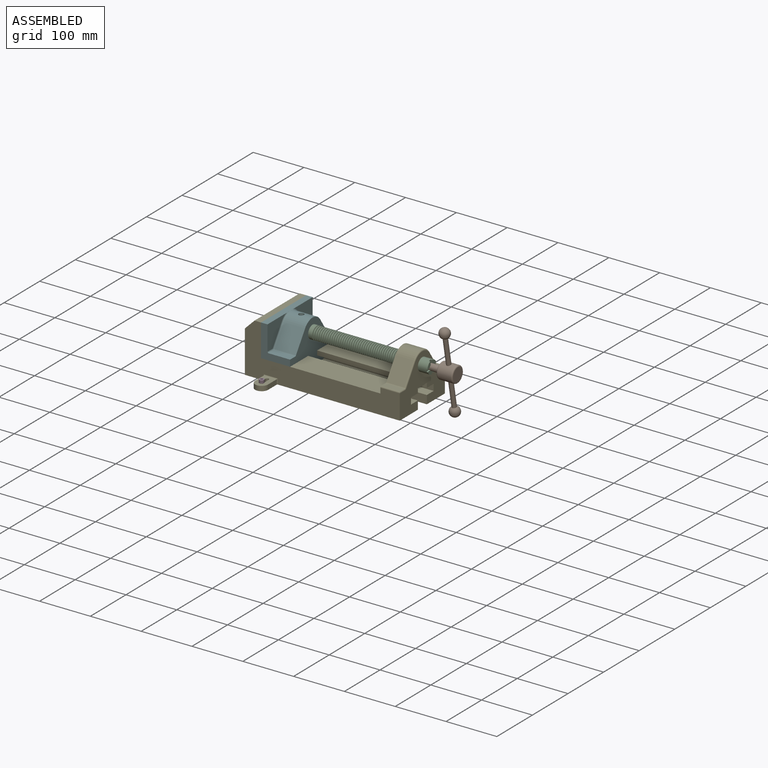
[diagram: assembled view]
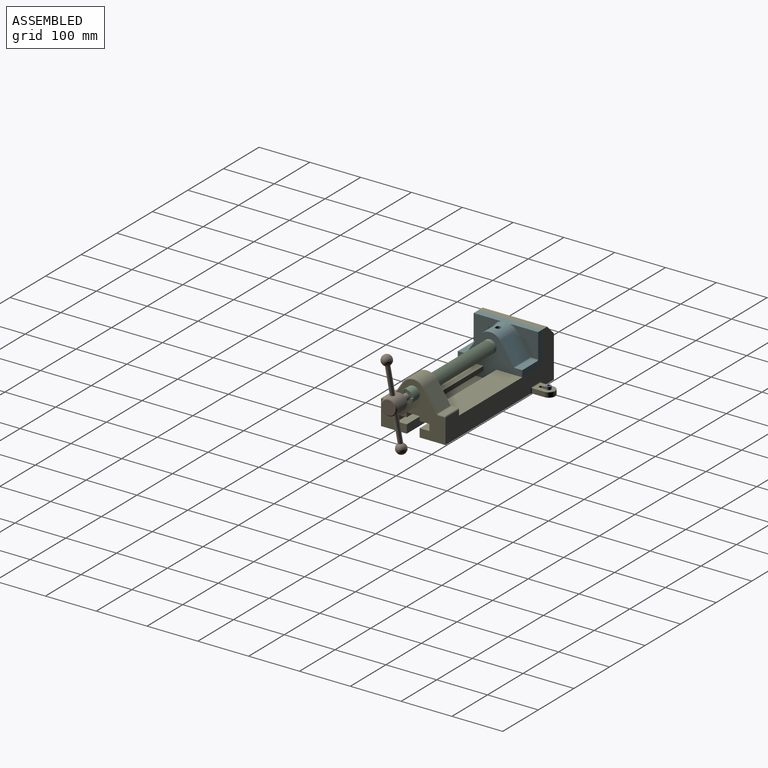
[diagram: assembled view, second angle]
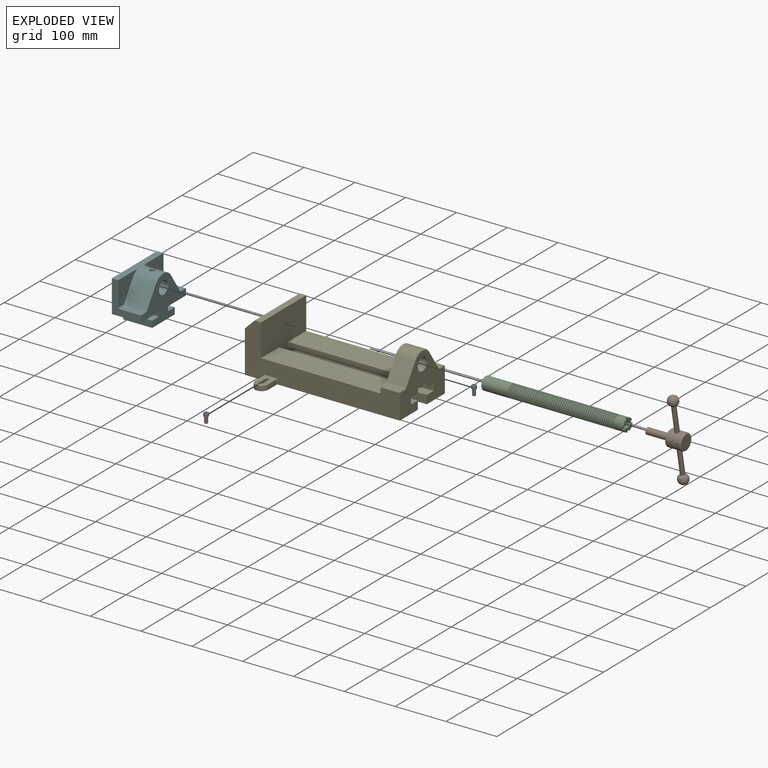
[diagram: exploded view]
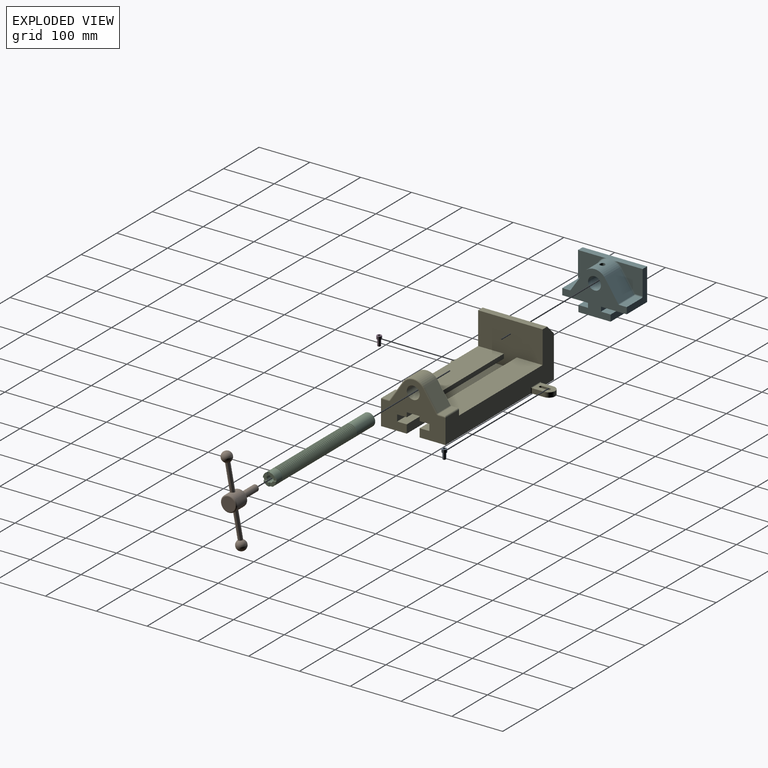
[diagram: exploded view, second angle]
ASSEMBLY  parts=6 mates=6
PART A: 15 faces, bbox 10.3x10.3x19.1 mm
  f0: plane 8.51x8.51mm, normal (0,0,1), area 37.2mm2, adj f5,f6,f7,f8,f9,f10,f14
  f1: cylinder r=3.17mm len=11.94mm, axis (0,0,1), area 238.2mm2, adj f4,f12
  f2: plane 4.83x4.83mm, normal (0,0,-1), area 18.3mm2, adj f12
  f3: cylinder r=4.76mm len=9.53mm, axis (0,0,-1), area 159.6mm2, adj f13,f14
  f4: plane 8.51x8.51mm, normal (0,0,-1), area 25.2mm2, adj f1,f13
  f5: plane 4.83x2.38mm, normal (-0.5,-0.87,0), area 13.3mm2, adj f0,f6,f10,f11
  f6: plane 4.83x2.38mm, normal (0.5,-0.87,0), area 13.3mm2, adj f0,f5,f7,f11
  f7: plane 4.83x2.75mm, normal (1,0,0), area 13.3mm2, adj f0,f6,f8,f11
  f8: plane 4.83x2.38mm, normal (0.5,0.87,0), area 13.3mm2, adj f0,f7,f9,f11
  f9: plane 4.83x2.38mm, normal (-0.5,0.87,0), area 13.3mm2, adj f0,f8,f10,f11
  f10: plane 4.83x2.75mm, normal (-1,0,0), area 13.3mm2, adj f0,f5,f9,f11
  f11: plane 5.5x4.76mm, normal (0,0,1), area 19.6mm2, adj f5,f6,f7,f8,f9,f10
  f12: cone r=3.17mm half-angle=45deg, axis (0,0,1), area 18.9mm2, adj f1,f2
  f13: torus R=4.25mm, axis (0,0,1), area 23mm2, adj f3,f4
  f14: torus R=4.25mm, axis (0,0,1), area 23mm2, adj f0,f3
PART B: 11 faces, bbox 76.2x172.7x34.4 mm
  f0: sphere r=10.16mm, area 1231.8mm2, adj f1
  f1: cylinder r=4.45mm len=51.82mm, axis (0,1,0), area 1438.5mm2, adj f0,f4
  f2: sphere r=10.16mm, area 1231.8mm2, adj f3
  f3: cylinder r=4.45mm len=51.82mm, axis (0,1,0), area 1438.5mm2, adj f2,f4
  f4: cylinder r=15.88mm len=31.75mm, axis (-1,0,0), area 2534.7mm2, adj f1,f3,f9,f10
  f5: cylinder r=6.35mm len=44.45mm, axis (-1,0,0), area 1773.5mm2, adj f6,f8
  f6: plane 12.7x12.7mm, normal (-1,0,0), area 126.7mm2, adj f5
  f7: plane 26.67x26.67mm, normal (1,0,0), area 558.6mm2, adj f10
  f8: plane 26.67x26.67mm, normal (-1,0,0), area 432mm2, adj f5,f9
  f9: torus R=13.33mm, axis (1,0,0), area 374.8mm2, adj f4,f8
  f10: torus R=13.33mm, axis (1,0,0), area 374.8mm2, adj f4,f7
PART C: 220 faces, bbox 279.4x25.4x25.4 mm
  f0: cylinder r=12.7mm len=25.4mm, axis (-1,0,0), area 1468.2mm2, adj f1,f2,f3,f5,f7,f208,f209,f210
  f1: plane 9.9x9.9mm, normal (1,0,0), area 62.3mm2, adj f0,f4,f213,f216
  f2: plane 9.9x9.9mm, normal (1,0,0), area 62.3mm2, adj f0,f4,f210,f218
  f3: plane 9.9x9.9mm, normal (1,0,0), area 62.3mm2, adj f0,f4,f209,f212
  f4: cylinder r=6.35mm len=25.4mm, axis (1,0,0), area 960.3mm2, adj f1,f2,f3,f5,f6,f208,f209,f210
  f5: plane 9.9x9.9mm, normal (1,0,0), area 62.3mm2, adj f0,f4,f215,f217
  f6: plane 12.7x12.7mm, normal (1,0,0), area 126.7mm2, adj f4
  f7: cone r=12.7mm half-angle=76deg, axis (1,0,0), area 188mm2, adj f0,f9
  f8: cone r=10.16mm half-angle=76deg, axis (-1,0,0), area 188mm2, adj f9,f10
  f9: cylinder r=10.16mm len=20.32mm, axis (1,0,0), area 81.1mm2, adj f7,f8
  f10: cylinder r=12.7mm len=25.4mm, axis (-1,0,0), area 131.7mm2, adj f8,f11
  f11: cone r=12.7mm half-angle=76deg, axis (1,0,0), area 188mm2, adj f10,f13
  f12: cone r=10.16mm half-angle=76deg, axis (-1,0,0), area 188mm2, adj f13,f14
  f13: cylinder r=10.16mm len=20.32mm, axis (1,0,0), area 81.1mm2, adj f11,f12
  f14: cylinder r=12.7mm len=25.4mm, axis (-1,0,0), area 131.7mm2, adj f12,f15
  f15: cone r=12.7mm half-angle=76deg, axis (1,0,0), area 188mm2, adj f14,f17
  f16: cone r=10.16mm half-angle=76deg, axis (-1,0,0), area 188mm2, adj f17,f18
  f17: cylinder r=10.16mm len=20.32mm, axis (1,0,0), area 81.1mm2, adj f15,f16
  f18: cylinder r=12.7mm len=25.4mm, axis (-1,0,0), area 131.7mm2, adj f16,f19
  f19: cone r=12.7mm half-angle=76deg, axis (1,0,0), area 188mm2, adj f18,f21
  f20: cone r=10.16mm half-angle=76deg, axis (-1,0,0), area 188mm2, adj f21,f22
  f21: cylinder r=10.16mm len=20.32mm, axis (1,0,0), area 81.1mm2, adj f19,f20
  f22: cylinder r=12.7mm len=25.4mm, axis (-1,0,0), area 131.7mm2, adj f20,f23
  f23: cone r=12.7mm half-angle=76deg, axis (1,0,0), area 188mm2, adj f22,f25
  f24: cone r=10.16mm half-angle=76deg, axis (-1,0,0), area 188mm2, adj f25,f26
  f25: cylinder r=10.16mm len=20.32mm, axis (1,0,0), area 81.1mm2, adj f23,f24
  f26: cylinder r=12.7mm len=25.4mm, axis (-1,0,0), area 131.7mm2, adj f24,f27
  f27: cone r=12.7mm half-angle=76deg, axis (1,0,0), area 188mm2, adj f26,f29
  f28: cone r=10.16mm half-angle=76deg, axis (-1,0,0), area 188mm2, adj f29,f30
  f29: cylinder r=10.16mm len=20.32mm, axis (1,0,0), area 81.1mm2, adj f27,f28
  f30: cylinder r=12.7mm len=25.4mm, axis (-1,0,0), area 131.7mm2, adj f28,f31
  f31: cone r=12.7mm half-angle=76deg, axis (1,0,0), area 188mm2, adj f30,f33
  f32: cone r=10.16mm half-angle=76deg, axis (-1,0,0), area 188mm2, adj f33,f34
  f33: cylinder r=10.16mm len=20.32mm, axis (1,0,0), area 81.1mm2, adj f31,f32
  f34: cylinder r=12.7mm len=25.4mm, axis (-1,0,0), area 131.7mm2, adj f32,f35
  f35: cone r=12.7mm half-angle=76deg, axis (1,0,0), area 188mm2, adj f34,f37
  f36: cone r=10.16mm half-angle=76deg, axis (-1,0,0), area 188mm2, adj f37,f38
  f37: cylinder r=10.16mm len=20.32mm, axis (1,0,0), area 81.1mm2, adj f35,f36
  f38: cylinder r=12.7mm len=25.4mm, axis (-1,0,0), area 131.7mm2, adj f36,f39
  f39: cone r=12.7mm half-angle=76deg, axis (1,0,0), area 188mm2, adj f38,f41
  f40: cone r=10.16mm half-angle=76deg, axis (-1,0,0), area 188mm2, adj f41,f42
  f41: cylinder r=10.16mm len=20.32mm, axis (1,0,0), area 81.1mm2, adj f39,f40
  f42: cylinder r=12.7mm len=25.4mm, axis (-1,0,0), area 131.7mm2, adj f40,f43
  f43: cone r=12.7mm half-angle=76deg, axis (1,0,0), area 188mm2, adj f42,f45
  f44: cone r=10.16mm half-angle=76deg, axis (-1,0,0), area 188mm2, adj f45,f46
  f45: cylinder r=10.16mm len=20.32mm, axis (1,0,0), area 81.1mm2, adj f43,f44
  f46: cylinder r=12.7mm len=25.4mm, axis (-1,0,0), area 131.7mm2, adj f44,f47
  f47: cone r=12.7mm half-angle=76deg, axis (1,0,0), area 188mm2, adj f46,f49
  f48: cone r=10.16mm half-angle=76deg, axis (-1,0,0), area 188mm2, adj f49,f50
  f49: cylinder r=10.16mm len=20.32mm, axis (1,0,0), area 81.1mm2, adj f47,f48
  f50: cylinder r=12.7mm len=25.4mm, axis (-1,0,0), area 131.7mm2, adj f48,f51
  f51: cone r=12.7mm half-angle=76deg, axis (1,0,0), area 188mm2, adj f50,f53
  f52: cone r=10.16mm half-angle=76deg, axis (-1,0,0), area 188mm2, adj f53,f54
  f53: cylinder r=10.16mm len=20.32mm, axis (1,0,0), area 81.1mm2, adj f51,f52
  f54: cylinder r=12.7mm len=25.4mm, axis (-1,0,0), area 131.7mm2, adj f52,f55
  f55: cone r=12.7mm half-angle=76deg, axis (1,0,0), area 188mm2, adj f54,f57
  f56: cone r=10.16mm half-angle=76deg, axis (-1,0,0), area 188mm2, adj f57,f58
  f57: cylinder r=10.16mm len=20.32mm, axis (1,0,0), area 81.1mm2, adj f55,f56
  f58: cylinder r=12.7mm len=25.4mm, axis (-1,0,0), area 131.7mm2, adj f56,f59
  f59: cone r=12.7mm half-angle=76deg, axis (1,0,0), area 188mm2, adj f58,f61
  f60: cone r=10.16mm half-angle=76deg, axis (-1,0,0), area 188mm2, adj f61,f62
  f61: cylinder r=10.16mm len=20.32mm, axis (1,0,0), area 81.1mm2, adj f59,f60
  f62: cylinder r=12.7mm len=25.4mm, axis (-1,0,0), area 131.7mm2, adj f60,f63
  f63: cone r=12.7mm half-angle=76deg, axis (1,0,0), area 188mm2, adj f62,f65
  f64: cone r=10.16mm half-angle=76deg, axis (-1,0,0), area 188mm2, adj f65,f66
  f65: cylinder r=10.16mm len=20.32mm, axis (1,0,0), area 81.1mm2, adj f63,f64
  f66: cylinder r=12.7mm len=25.4mm, axis (-1,0,0), area 131.7mm2, adj f64,f67
  f67: cone r=12.7mm half-angle=76deg, axis (1,0,0), area 188mm2, adj f66,f69
  f68: cone r=10.16mm half-angle=76deg, axis (-1,0,0), area 188mm2, adj f69,f70
  f69: cylinder r=10.16mm len=20.32mm, axis (1,0,0), area 81.1mm2, adj f67,f68
  f70: cylinder r=12.7mm len=25.4mm, axis (-1,0,0), area 131.7mm2, adj f68,f71
  f71: cone r=12.7mm half-angle=76deg, axis (1,0,0), area 188mm2, adj f70,f73
  f72: cone r=10.16mm half-angle=76deg, axis (-1,0,0), area 188mm2, adj f73,f74
  f73: cylinder r=10.16mm len=20.32mm, axis (1,0,0), area 81.1mm2, adj f71,f72
  f74: cylinder r=12.7mm len=25.4mm, axis (-1,0,0), area 131.7mm2, adj f72,f75
  f75: cone r=12.7mm half-angle=76deg, axis (1,0,0), area 188mm2, adj f74,f77
  f76: cone r=10.16mm half-angle=76deg, axis (-1,0,0), area 188mm2, adj f77,f78
  f77: cylinder r=10.16mm len=20.32mm, axis (1,0,0), area 81.1mm2, adj f75,f76
  f78: cylinder r=12.7mm len=25.4mm, axis (-1,0,0), area 131.7mm2, adj f76,f79
  f79: cone r=12.7mm half-angle=76deg, axis (1,0,0), area 188mm2, adj f78,f81
  f80: cone r=10.16mm half-angle=76deg, axis (-1,0,0), area 188mm2, adj f81,f82
  f81: cylinder r=10.16mm len=20.32mm, axis (1,0,0), area 81.1mm2, adj f79,f80
  f82: cylinder r=12.7mm len=25.4mm, axis (-1,0,0), area 131.7mm2, adj f80,f83
  f83: cone r=12.7mm half-angle=76deg, axis (1,0,0), area 188mm2, adj f82,f85
  f84: cone r=10.16mm half-angle=76deg, axis (-1,0,0), area 188mm2, adj f85,f86
  f85: cylinder r=10.16mm len=20.32mm, axis (1,0,0), area 81.1mm2, adj f83,f84
  f86: cylinder r=12.7mm len=25.4mm, axis (-1,0,0), area 131.7mm2, adj f84,f87
  f87: cone r=12.7mm half-angle=76deg, axis (1,0,0), area 188mm2, adj f86,f89
  f88: cone r=10.16mm half-angle=76deg, axis (-1,0,0), area 188mm2, adj f89,f90
  f89: cylinder r=10.16mm len=20.32mm, axis (1,0,0), area 81.1mm2, adj f87,f88
  f90: cylinder r=12.7mm len=25.4mm, axis (-1,0,0), area 131.7mm2, adj f88,f91
  f91: cone r=12.7mm half-angle=76deg, axis (1,0,0), area 188mm2, adj f90,f93
  f92: cone r=10.16mm half-angle=76deg, axis (-1,0,0), area 188mm2, adj f93,f94
  f93: cylinder r=10.16mm len=20.32mm, axis (1,0,0), area 81.1mm2, adj f91,f92
  f94: cylinder r=12.7mm len=25.4mm, axis (-1,0,0), area 131.7mm2, adj f92,f95
  f95: cone r=12.7mm half-angle=76deg, axis (1,0,0), area 188mm2, adj f94,f97
  f96: cone r=10.16mm half-angle=76deg, axis (-1,0,0), area 188mm2, adj f97,f98
  f97: cylinder r=10.16mm len=20.32mm, axis (1,0,0), area 81.1mm2, adj f95,f96
  f98: cylinder r=12.7mm len=25.4mm, axis (-1,0,0), area 131.7mm2, adj f96,f99
  f99: cone r=12.7mm half-angle=76deg, axis (1,0,0), area 188mm2, adj f98,f101
  f100: cone r=10.16mm half-angle=76deg, axis (-1,0,0), area 188mm2, adj f101,f102
  f101: cylinder r=10.16mm len=20.32mm, axis (1,0,0), area 81.1mm2, adj f99,f100
  f102: cylinder r=12.7mm len=25.4mm, axis (-1,0,0), area 131.7mm2, adj f100,f103
  f103: cone r=12.7mm half-angle=76deg, axis (1,0,0), area 188mm2, adj f102,f105
  f104: cone r=10.16mm half-angle=76deg, axis (-1,0,0), area 188mm2, adj f105,f106
  f105: cylinder r=10.16mm len=20.32mm, axis (1,0,0), area 81.1mm2, adj f103,f104
  f106: cylinder r=12.7mm len=25.4mm, axis (-1,0,0), area 131.7mm2, adj f104,f107
  f107: cone r=12.7mm half-angle=76deg, axis (1,0,0), area 188mm2, adj f106,f109
  f108: cone r=10.16mm half-angle=76deg, axis (-1,0,0), area 188mm2, adj f109,f110
  f109: cylinder r=10.16mm len=20.32mm, axis (1,0,0), area 81.1mm2, adj f107,f108
  f110: cylinder r=12.7mm len=25.4mm, axis (-1,0,0), area 131.7mm2, adj f108,f111
  f111: cone r=12.7mm half-angle=76deg, axis (1,0,0), area 188mm2, adj f110,f113
  f112: cone r=10.16mm half-angle=76deg, axis (-1,0,0), area 188mm2, adj f113,f114
  f113: cylinder r=10.16mm len=20.32mm, axis (1,0,0), area 81.1mm2, adj f111,f112
  f114: cylinder r=12.7mm len=25.4mm, axis (-1,0,0), area 131.7mm2, adj f112,f115
  f115: cone r=12.7mm half-angle=76deg, axis (1,0,0), area 188mm2, adj f114,f117
  f116: cone r=10.16mm half-angle=76deg, axis (-1,0,0), area 188mm2, adj f117,f118
  f117: cylinder r=10.16mm len=20.32mm, axis (1,0,0), area 81.1mm2, adj f115,f116
  f118: cylinder r=12.7mm len=25.4mm, axis (-1,0,0), area 131.7mm2, adj f116,f119
  f119: cone r=12.7mm half-angle=76deg, axis (1,0,0), area 188mm2, adj f118,f121
  f120: cone r=10.16mm half-angle=76deg, axis (-1,0,0), area 188mm2, adj f121,f122
  f121: cylinder r=10.16mm len=20.32mm, axis (1,0,0), area 81.1mm2, adj f119,f120
  f122: cylinder r=12.7mm len=25.4mm, axis (-1,0,0), area 131.7mm2, adj f120,f123
  f123: cone r=12.7mm half-angle=76deg, axis (1,0,0), area 188mm2, adj f122,f125
  f124: cone r=10.16mm half-angle=76deg, axis (-1,0,0), area 188mm2, adj f125,f126
  f125: cylinder r=10.16mm len=20.32mm, axis (1,0,0), area 81.1mm2, adj f123,f124
  f126: cylinder r=12.7mm len=25.4mm, axis (-1,0,0), area 131.7mm2, adj f124,f127
  f127: cone r=12.7mm half-angle=76deg, axis (1,0,0), area 188mm2, adj f126,f129
  f128: cone r=10.16mm half-angle=76deg, axis (-1,0,0), area 188mm2, adj f129,f130
  f129: cylinder r=10.16mm len=20.32mm, axis (1,0,0), area 81.1mm2, adj f127,f128
  f130: cylinder r=12.7mm len=25.4mm, axis (-1,0,0), area 131.7mm2, adj f128,f131
  f131: cone r=12.7mm half-angle=76deg, axis (1,0,0), area 188mm2, adj f130,f133
  f132: cone r=10.16mm half-angle=76deg, axis (-1,0,0), area 188mm2, adj f133,f134
  f133: cylinder r=10.16mm len=20.32mm, axis (1,0,0), area 81.1mm2, adj f131,f132
  f134: cylinder r=12.7mm len=25.4mm, axis (-1,0,0), area 131.7mm2, adj f132,f135
  f135: cone r=12.7mm half-angle=76deg, axis (1,0,0), area 188mm2, adj f134,f137
  f136: cone r=10.16mm half-angle=76deg, axis (-1,0,0), area 188mm2, adj f137,f138
  f137: cylinder r=10.16mm len=20.32mm, axis (1,0,0), area 81.1mm2, adj f135,f136
  f138: cylinder r=12.7mm len=25.4mm, axis (-1,0,0), area 131.7mm2, adj f136,f139
  f139: cone r=12.7mm half-angle=76deg, axis (1,0,0), area 188mm2, adj f138,f141
  f140: cone r=10.16mm half-angle=76deg, axis (-1,0,0), area 188mm2, adj f141,f142
  f141: cylinder r=10.16mm len=20.32mm, axis (1,0,0), area 81.1mm2, adj f139,f140
  f142: cylinder r=12.7mm len=25.4mm, axis (-1,0,0), area 131.7mm2, adj f140,f143
  f143: cone r=12.7mm half-angle=76deg, axis (1,0,0), area 188mm2, adj f142,f145
  f144: cone r=10.16mm half-angle=76deg, axis (-1,0,0), area 188mm2, adj f145,f146
  f145: cylinder r=10.16mm len=20.32mm, axis (1,0,0), area 81.1mm2, adj f143,f144
  f146: cylinder r=12.7mm len=25.4mm, axis (-1,0,0), area 131.7mm2, adj f144,f147
  f147: cone r=12.7mm half-angle=76deg, axis (1,0,0), area 188mm2, adj f146,f149
  f148: cone r=10.16mm half-angle=76deg, axis (-1,0,0), area 188mm2, adj f149,f150
  f149: cylinder r=10.16mm len=20.32mm, axis (1,0,0), area 81.1mm2, adj f147,f148
  f150: cylinder r=12.7mm len=25.4mm, axis (-1,0,0), area 131.7mm2, adj f148,f151
  f151: cone r=12.7mm half-angle=76deg, axis (1,0,0), area 188mm2, adj f150,f153
  f152: cone r=10.16mm half-angle=76deg, axis (-1,0,0), area 188mm2, adj f153,f154
  f153: cylinder r=10.16mm len=20.32mm, axis (1,0,0), area 81.1mm2, adj f151,f152
  f154: cylinder r=12.7mm len=25.4mm, axis (-1,0,0), area 131.7mm2, adj f152,f155
  f155: cone r=12.7mm half-angle=76deg, axis (1,0,0), area 188mm2, adj f154,f157
  f156: cone r=10.16mm half-angle=76deg, axis (-1,0,0), area 188mm2, adj f157,f158
  f157: cylinder r=10.16mm len=20.32mm, axis (1,0,0), area 81.1mm2, adj f155,f156
  f158: cylinder r=12.7mm len=25.4mm, axis (-1,0,0), area 131.7mm2, adj f156,f159
  f159: cone r=12.7mm half-angle=76deg, axis (1,0,0), area 188mm2, adj f158,f161
  f160: cone r=10.16mm half-angle=76deg, axis (-1,0,0), area 188mm2, adj f161,f162
  f161: cylinder r=10.16mm len=20.32mm, axis (1,0,0), area 81.1mm2, adj f159,f160
  f162: cylinder r=12.7mm len=25.4mm, axis (-1,0,0), area 131.7mm2, adj f160,f163
  f163: cone r=12.7mm half-angle=76deg, axis (1,0,0), area 188mm2, adj f162,f165
  f164: cone r=10.16mm half-angle=76deg, axis (-1,0,0), area 188mm2, adj f165,f166
  f165: cylinder r=10.16mm len=20.32mm, axis (1,0,0), area 81.1mm2, adj f163,f164
  f166: cylinder r=12.7mm len=25.4mm, axis (-1,0,0), area 131.7mm2, adj f164,f167
  f167: cone r=12.7mm half-angle=76deg, axis (1,0,0), area 188mm2, adj f166,f169
  f168: cone r=10.16mm half-angle=76deg, axis (-1,0,0), area 188mm2, adj f169,f170
  f169: cylinder r=10.16mm len=20.32mm, axis (1,0,0), area 81.1mm2, adj f167,f168
  f170: cylinder r=12.7mm len=25.4mm, axis (-1,0,0), area 131.7mm2, adj f168,f171
  f171: cone r=12.7mm half-angle=76deg, axis (1,0,0), area 188mm2, adj f170,f173
  f172: cone r=10.16mm half-angle=76deg, axis (-1,0,0), area 188mm2, adj f173,f174
  f173: cylinder r=10.16mm len=20.32mm, axis (1,0,0), area 81.1mm2, adj f171,f172
  f174: cylinder r=12.7mm len=25.4mm, axis (-1,0,0), area 131.7mm2, adj f172,f175
  f175: cone r=12.7mm half-angle=76deg, axis (1,0,0), area 188mm2, adj f174,f177
  f176: cone r=10.16mm half-angle=76deg, axis (-1,0,0), area 188mm2, adj f177,f178
  f177: cylinder r=10.16mm len=20.32mm, axis (1,0,0), area 81.1mm2, adj f175,f176
  f178: cylinder r=12.7mm len=25.4mm, axis (-1,0,0), area 131.7mm2, adj f176,f179
  f179: cone r=12.7mm half-angle=76deg, axis (1,0,0), area 188mm2, adj f178,f181
  f180: cone r=10.16mm half-angle=76deg, axis (-1,0,0), area 188mm2, adj f181,f182
  f181: cylinder r=10.16mm len=20.32mm, axis (1,0,0), area 81.1mm2, adj f179,f180
  f182: cylinder r=12.7mm len=25.4mm, axis (-1,0,0), area 131.7mm2, adj f180,f183
  f183: cone r=12.7mm half-angle=76deg, axis (1,0,0), area 188mm2, adj f182,f185
  f184: cone r=10.16mm half-angle=76deg, axis (-1,0,0), area 188mm2, adj f185,f186
  f185: cylinder r=10.16mm len=20.32mm, axis (1,0,0), area 81.1mm2, adj f183,f184
  f186: cylinder r=12.7mm len=25.4mm, axis (-1,0,0), area 131.7mm2, adj f184,f187
  f187: cone r=12.7mm half-angle=76deg, axis (1,0,0), area 188mm2, adj f186,f189
  f188: cone r=10.16mm half-angle=76deg, axis (-1,0,0), area 188mm2, adj f189,f190
  f189: cylinder r=10.16mm len=20.32mm, axis (1,0,0), area 81.1mm2, adj f187,f188
  f190: cylinder r=12.7mm len=25.4mm, axis (-1,0,0), area 131.7mm2, adj f188,f191
  f191: cone r=12.7mm half-angle=76deg, axis (1,0,0), area 188mm2, adj f190,f193
  f192: cone r=10.16mm half-angle=76deg, axis (-1,0,0), area 188mm2, adj f193,f194
  f193: cylinder r=10.16mm len=20.32mm, axis (1,0,0), area 81.1mm2, adj f191,f192
  f194: cylinder r=12.7mm len=25.4mm, axis (-1,0,0), area 131.7mm2, adj f192,f195
  f195: cone r=12.7mm half-angle=76deg, axis (1,0,0), area 188mm2, adj f194,f197
  f196: cone r=10.16mm half-angle=76deg, axis (-1,0,0), area 188mm2, adj f197,f198
  f197: cylinder r=10.16mm len=20.32mm, axis (1,0,0), area 81.1mm2, adj f195,f196
  f198: cylinder r=12.7mm len=25.4mm, axis (-1,0,0), area 131.7mm2, adj f196,f199
  f199: cone r=12.7mm half-angle=76deg, axis (1,0,0), area 188mm2, adj f198,f201
  f200: cone r=10.16mm half-angle=76deg, axis (-1,0,0), area 188mm2, adj f201,f202
  f201: cylinder r=10.16mm len=20.32mm, axis (1,0,0), area 81.1mm2, adj f199,f200
  f202: cylinder r=12.7mm len=25.4mm, axis (-1,0,0), area 131.7mm2, adj f200,f203
  f203: cone r=12.7mm half-angle=76deg, axis (1,0,0), area 188mm2, adj f202,f205
  f204: cone r=10.16mm half-angle=76deg, axis (-1,0,0), area 188mm2, adj f205,f207
  f205: cylinder r=10.16mm len=20.32mm, axis (1,0,0), area 81.1mm2, adj f203,f204
  f206: plane 25.4x25.4mm, normal (-1,0,0), area 506.7mm2, adj f207
  f207: cylinder r=12.7mm len=52.45mm, axis (-1,0,0), area 4185.4mm2, adj f204,f206
  f208: plane 6.88x5.08mm, normal (1,0,0), area 32.7mm2, adj f0,f4,f209,f210
  f209: plane 6.62x2.54mm, normal (0,-1,0), area 16.8mm2, adj f0,f3,f4,f208
  f210: plane 6.62x2.54mm, normal (0,1,0), area 16.8mm2, adj f0,f2,f4,f208
  f211: plane 6.88x5.08mm, normal (1,0,0), area 32.7mm2, adj f0,f4,f212,f213
  f212: plane 6.62x2.54mm, normal (0,0,1), area 16.8mm2, adj f0,f3,f4,f211
  f213: plane 6.62x2.54mm, normal (0,0,-1), area 16.8mm2, adj f0,f1,f4,f211
  f214: plane 6.88x5.08mm, normal (1,0,0), area 32.7mm2, adj f0,f4,f215,f216
  f215: plane 6.62x2.54mm, normal (0,1,0), area 16.8mm2, adj f0,f4,f5,f214
  f216: plane 6.62x2.54mm, normal (0,-1,0), area 16.8mm2, adj f0,f1,f4,f214
  f217: plane 6.62x2.54mm, normal (0,0,-1), area 16.8mm2, adj f0,f4,f5,f219
  f218: plane 6.62x2.54mm, normal (0,0,1), area 16.8mm2, adj f0,f2,f4,f219
  f219: plane 6.88x5.08mm, normal (1,0,0), area 32.7mm2, adj f0,f4,f217,f218
PART D: same geometry as A
PART E: 61 faces, bbox 304.8x203.2x103.7 mm
  f0: plane 304.8x101.6mm, normal (0,1,0), area 13520.3mm2, adj f3,f4,f5,f6,f7,f8,f9,f16
  f1: plane 304.8x101.6mm, normal (0,-1,0), area 13520.3mm2, adj f2,f3,f5,f6,f7,f8,f9,f16
  f2: plane 234.95x50.8mm, normal (0,0,1), area 11935.5mm2, adj f1,f5,f16,f26
  f3: plane 127x99.06mm, normal (1,0,0), area 7097.5mm2, adj f0,f1,f9,f14,f17,f18,f19,f20
  f4: plane 234.95x50.8mm, normal (0,0,1), area 11935.5mm2, adj f0,f5,f16,f27
  f5: plane 127x101.6mm, normal (1,0,0), area 9516.1mm2, adj f0,f1,f2,f4,f6,f9,f18,f19
  f6: plane 127x12.7mm, normal (0,0,1), area 1612.9mm2, adj f0,f1,f5,f7
  f7: plane 127x19.05mm, normal (-0.71,0,0.71), area 3421.5mm2, adj f0,f1,f6,f8
  f8: plane 127x82.55mm, normal (-1,0,0), area 10483.8mm2, adj f0,f1,f7,f9
  f9: plane 304.8x203.2mm, normal (0,0,-1), area 33298.3mm2, adj f0,f1,f3,f5,f8,f21,f22,f39
  f10: plane 35.56x11.98mm, normal (0,0,1), area 426mm2, adj f16,f28,f29,f30
  f11: plane 38.43x35.56mm, normal (0,0.83,0.56), area 1645.4mm2, adj f12,f16,f29,f32
  f12: cylinder r=25.4mm len=42.19mm, axis (1,0,0), area 1770.2mm2, adj f11,f13,f16,f33
  f13: plane 38.43x35.56mm, normal (0,-0.83,0.56), area 1645.4mm2, adj f12,f16,f34,f35
  f14: cylinder r=12.7mm len=38.1mm, axis (1,0,0), area 3040.2mm2, adj f3,f16
  f15: plane 35.56x11.98mm, normal (0,0,1), area 426mm2, adj f16,f34,f36,f38
  f16: plane 127x63.5mm, normal (-1,0,0), area 4155.5mm2, adj f0,f1,f2,f4,f10,f11,f12,f13
  f17: plane 38.1x25.4mm, normal (0,0,-1), area 967.7mm2, adj f3,f16,f26,f27
  f18: plane 273.05x19.05mm, normal (0,0,-1), area 5201.6mm2, adj f3,f5,f19,f26
  f19: plane 273.05x12.7mm, normal (0,1,0), area 3467.7mm2, adj f3,f5,f18,f20
  f20: plane 273.05x19.05mm, normal (0,0,1), area 5201.6mm2, adj f3,f5,f19,f21
  f21: plane 273.05x16.51mm, normal (0,1,0), area 4508.1mm2, adj f3,f5,f9,f20
  f22: plane 273.05x16.51mm, normal (0,-1,0), area 4508.1mm2, adj f3,f5,f9,f23
  f23: plane 273.05x19.05mm, normal (0,0,1), area 5201.6mm2, adj f3,f5,f22,f24
  f24: plane 273.05x12.7mm, normal (0,-1,0), area 3467.7mm2, adj f3,f5,f23,f25
  f25: plane 273.05x19.05mm, normal (0,0,-1), area 5201.6mm2, adj f3,f5,f24,f27
  f26: plane 273.05x8.89mm, normal (0,1,0), area 2427.4mm2, adj f2,f3,f5,f17,f18
  f27: plane 273.05x8.89mm, normal (0,-1,0), area 2427.4mm2, adj f3,f4,f5,f17,f25
  f28: cylinder r=2.54mm len=38.1mm, axis (1,0,0), area 148.3mm2, adj f0,f10,f16,f30
  f29: cylinder r=2.54mm len=35.56mm, axis (-1,0,0), area 88.5mm2, adj f10,f11,f16,f31
  f30: cylinder r=2.54mm len=14.52mm, axis (0,1,0), area 54.3mm2, adj f3,f10,f28,f31
  f31: torus R=5.08mm, axis (-1,0,0), area 13.5mm2, adj f3,f29,f30,f32
  f32: cylinder r=2.54mm len=39.84mm, axis (0,0.56,-0.83), area 184.6mm2, adj f3,f11,f31,f33
  f33: torus R=22.86mm, axis (-1,0,0), area 191.4mm2, adj f3,f12,f32,f35
  f34: cylinder r=2.54mm len=35.56mm, axis (-1,0,0), area 88.5mm2, adj f13,f15,f16,f37
  f35: cylinder r=2.54mm len=39.84mm, axis (0,0.56,0.83), area 184.6mm2, adj f3,f13,f33,f37
  f36: cylinder r=2.54mm len=38.1mm, axis (-1,0,0), area 148.3mm2, adj f1,f15,f16,f38
  f37: torus R=5.08mm, axis (-1,0,0), area 13.5mm2, adj f3,f34,f35,f38
  f38: cylinder r=2.54mm len=14.52mm, axis (0,1,0), area 54.3mm2, adj f3,f15,f36,f37
  f39: plane 23.88x9.53mm, normal (-1,0,0), area 227.4mm2, adj f9,f45,f46,f60
  f40: plane 23.88x9.53mm, normal (1,0,0), area 227.4mm2, adj f9,f45,f46,f58
  f41: cylinder r=3.3mm len=9.53mm, axis (0,0,-1), area 98.8mm2, adj f9,f42,f44,f46
  f42: plane 15.62x9.53mm, normal (-1,0,0), area 148.8mm2, adj f9,f41,f43,f46
  f43: cylinder r=3.3mm len=9.53mm, axis (0,0,-1), area 98.8mm2, adj f9,f42,f44,f46
  f44: plane 15.62x9.53mm, normal (1,0,0), area 148.8mm2, adj f9,f41,f43,f46
  f45: cylinder r=12.7mm len=25.4mm, axis (0,0,-1), area 380mm2, adj f9,f39,f40,f46
  f46: plane 36.58x25.4mm, normal (0,0,1), area 722.4mm2, adj f39,f40,f41,f42,f43,f44,f45,f59
  f47: plane 23.88x9.53mm, normal (-1,0,0), area 227.4mm2, adj f9,f53,f54,f56
  f48: plane 23.88x9.53mm, normal (1,0,0), area 227.4mm2, adj f9,f53,f54,f55
  f49: cylinder r=3.3mm len=9.53mm, axis (0,0,-1), area 98.8mm2, adj f9,f50,f52,f54
  f50: plane 15.62x9.53mm, normal (-1,0,0), area 148.8mm2, adj f9,f49,f51,f54
  f51: cylinder r=3.3mm len=9.53mm, axis (0,0,-1), area 98.8mm2, adj f9,f50,f52,f54
  f52: plane 15.62x9.53mm, normal (1,0,0), area 148.8mm2, adj f9,f49,f51,f54
  f53: cylinder r=12.7mm len=25.4mm, axis (0,0,-1), area 380mm2, adj f9,f47,f48,f54
  f54: plane 36.58x25.4mm, normal (0,0,1), area 722.4mm2, adj f47,f48,f49,f50,f51,f52,f53,f57
  f55: cylinder r=1.52mm len=11.05mm, axis (0,0,-1), area 24.1mm2, adj f0,f9,f48,f57
  f56: cylinder r=1.52mm len=11.05mm, axis (0,0,1), area 24.1mm2, adj f0,f9,f47,f57
  f57: cylinder r=1.52mm len=28.45mm, axis (1,0,0), area 63.5mm2, adj f0,f54,f55,f56
  f58: cylinder r=1.52mm len=11.05mm, axis (0,0,1), area 24.1mm2, adj f1,f9,f40,f59
  f59: cylinder r=1.52mm len=28.45mm, axis (-1,0,0), area 63.5mm2, adj f1,f46,f58,f60
  f60: cylinder r=1.52mm len=11.05mm, axis (0,0,-1), area 24.1mm2, adj f1,f9,f39,f59
PART F: 36 faces, bbox 57.2x127x89 mm
  f0: plane 57.15x50.8mm, normal (0,0,-1), area 2903.2mm2, adj f6,f9,f10,f23
  f1: cylinder r=12.7mm len=44.45mm, axis (1,0,0), area 3464.3mm2, adj f6,f15,f16
  f2: plane 41.91x14.52mm, normal (0,0,1), area 608.5mm2, adj f6,f11,f24,f25
  f3: plane 51.86x48.26mm, normal (1,0,0), area 1495.7mm2, adj f8,f10,f31,f33,f35
  f4: plane 51.86x48.26mm, normal (1,0,0), area 1495.7mm2, adj f8,f11,f24,f28,f29
  f5: plane 57.15x50.8mm, normal (0,0,-1), area 2903.2mm2, adj f6,f9,f11,f22
  f6: plane 127x85.09mm, normal (1,0,0), area 5190.6mm2, adj f0,f1,f2,f5,f7,f10,f11,f12
  f7: plane 41.91x14.52mm, normal (0,0,1), area 608.5mm2, adj f6,f10,f30,f31
  f8: plane 127x12.7mm, normal (0,0,1), area 1612.9mm2, adj f3,f4,f9,f10,f11,f26,f34
  f9: plane 127x85.09mm, normal (-1,0,0), area 9096.8mm2, adj f0,f5,f8,f10,f11,f17,f18,f19
  f10: plane 63.5x57.15mm, normal (0,-1,0), area 1372.3mm2, adj f0,f3,f6,f7,f8,f9,f31
  f11: plane 63.5x57.15mm, normal (0,1,0), area 1372.3mm2, adj f2,f4,f5,f6,f8,f9,f24
  f12: plane 41.91x38.43mm, normal (0,-0.83,0.56), area 1939.2mm2, adj f6,f13,f30,f33
  f13: cylinder r=25.4mm len=44.45mm, axis (1,0,0), area 2026.5mm2, adj f6,f12,f14,f16,f26,f28,f34,f35
  f14: plane 41.91x38.43mm, normal (0,0.83,0.56), area 1939.2mm2, adj f6,f13,f25,f29
  f15: plane 25.4x25.4mm, normal (1,0,0), area 506.7mm2, adj f1
  f16: cylinder r=5.08mm len=13.76mm, axis (0,0,1), area 414mm2, adj f1,f13
  f17: plane 57.15x19.05mm, normal (0,0,1), area 1088.7mm2, adj f6,f9,f18,f23
  f18: plane 57.15x12.7mm, normal (0,-1,0), area 725.8mm2, adj f6,f9,f17,f19
  f19: plane 63.5x57.15mm, normal (0,0,-1), area 3629mm2, adj f6,f9,f18,f20
  f20: plane 57.15x12.7mm, normal (0,1,0), area 725.8mm2, adj f6,f9,f19,f21
  f21: plane 57.15x19.05mm, normal (0,0,1), area 1088.7mm2, adj f6,f9,f20,f22
  f22: plane 57.15x8.89mm, normal (0,1,0), area 508.1mm2, adj f5,f6,f9,f21
  f23: plane 57.15x8.89mm, normal (0,-1,0), area 508.1mm2, adj f0,f6,f9,f17
  f24: cylinder r=2.54mm len=14.52mm, axis (0,-1,0), area 57.9mm2, adj f2,f4,f11,f27
  f25: cylinder r=2.54mm len=41.91mm, axis (1,0,0), area 104.3mm2, adj f2,f6,f14,f27
  f26: bspline ~12.24x2.8mm, area 20.9mm2, adj f8,f13,f28
  f27: sphere r=2.54mm, area 6.3mm2, adj f24,f25,f29
  f28: torus R=27.94mm, axis (1,0,0), area 57.8mm2, adj f4,f13,f26,f29
  f29: cylinder r=2.54mm len=39.84mm, axis (0,-0.56,0.83), area 184.6mm2, adj f4,f14,f27,f28
  f30: cylinder r=2.54mm len=41.91mm, axis (1,0,0), area 104.3mm2, adj f6,f7,f12,f32
  f31: cylinder r=2.54mm len=14.52mm, axis (0,-1,0), area 57.9mm2, adj f3,f7,f10,f32
  f32: sphere r=2.54mm, area 6.3mm2, adj f30,f31,f33
  f33: cylinder r=2.54mm len=39.84mm, axis (0,-0.56,-0.83), area 184.6mm2, adj f3,f12,f32,f35
  f34: bspline ~12.24x2.8mm, area 20.9mm2, adj f8,f13,f35
  f35: torus R=27.94mm, axis (1,0,0), area 57.8mm2, adj f3,f13,f33,f34
PLACE A rot(axis=(0,0,-1),90deg) t=(-221.39,75.49,12.1)mm
PLACE B rot(axis=(1,0,0),100.8deg) t=(32.61,61.44,93.05)mm
PLACE C rot(axis=(1,0,0),100.8deg) t=(32.61,61.44,93.05)mm
PLACE D rot(axis=(0,0,1),90deg) t=(-221.39,-102.31,12.1)mm
PLACE E t=(32.61,-13.41,2.58)mm fixed
PLACE F t=(32.61,-13.41,2.58)mm
MATE ball F.f28 <-> C.f7  axis (1,0,0) through (-227.74,-13.41,78.78)mm
MATE fastened B.f5 <-> C.f4  axis (-1,0,0) through (26.26,-13.41,78.78)mm
MATE cylindrical E.f12 <-> C.f7  axis (1,0,0) through (13.56,-13.41,78.78)mm
MATE pin_slot A.f1 <-> E.f49  axis (0,0,-1) through (-221.39,75.49,12.1)mm
MATE slider F.f9 <-> E.f5  axis (-1,0,0) through (-240.44,-13.41,104.18)mm
MATE pin_slot D.f1 <-> E.f41  axis (0,0,1) through (-221.39,-102.31,12.1)mm
